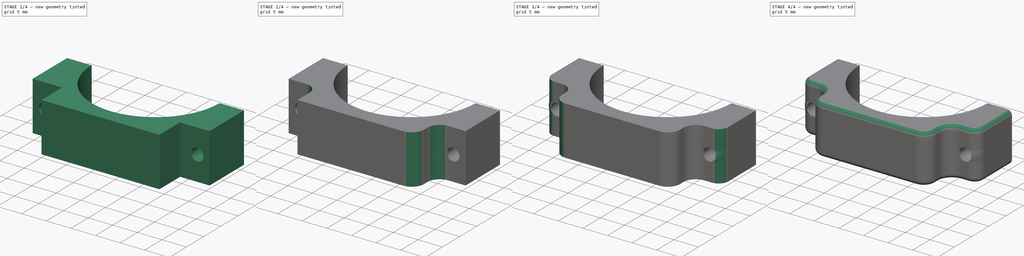
[diagram: build sequence overview — one tinted view per stage of 4, left to right]
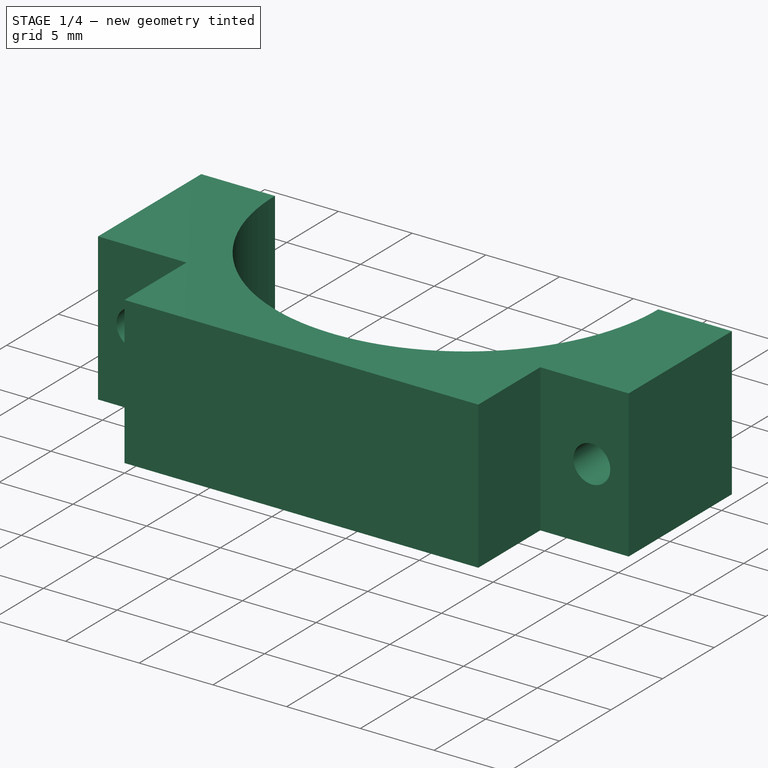
[diagram: stage 1 of 4 — iso view after this stage's code; geometry added in this stage tinted green]
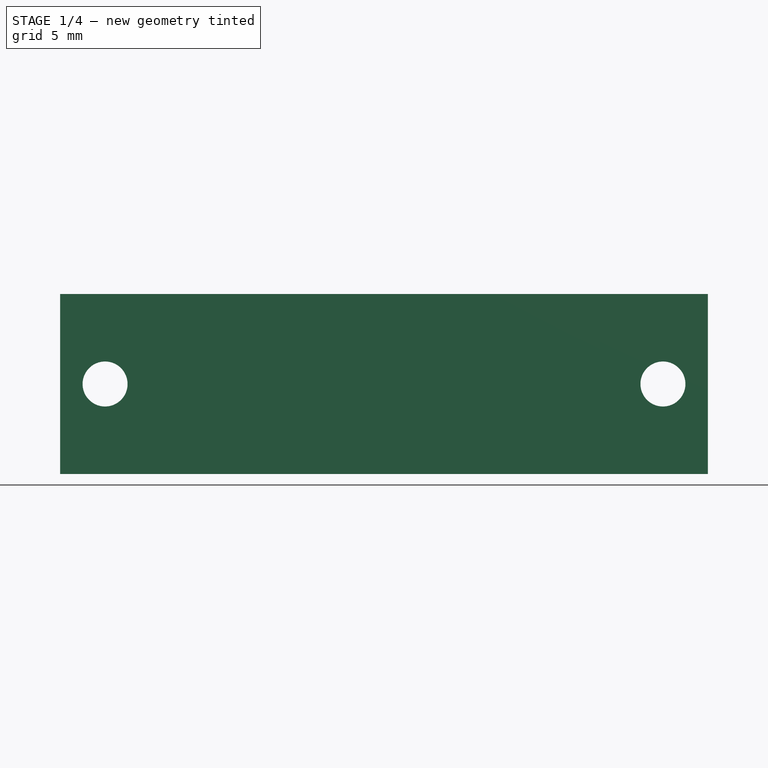
[diagram: stage 1 of 4 — front view after this stage's code; geometry added in this stage tinted green]
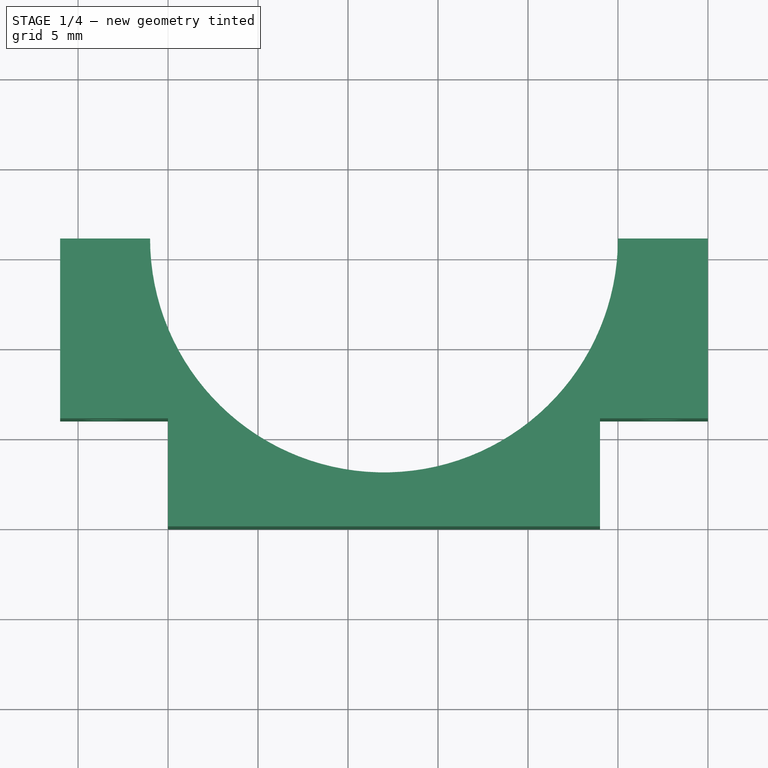
[diagram: stage 1 of 4 — top view after this stage's code; geometry added in this stage tinted green]
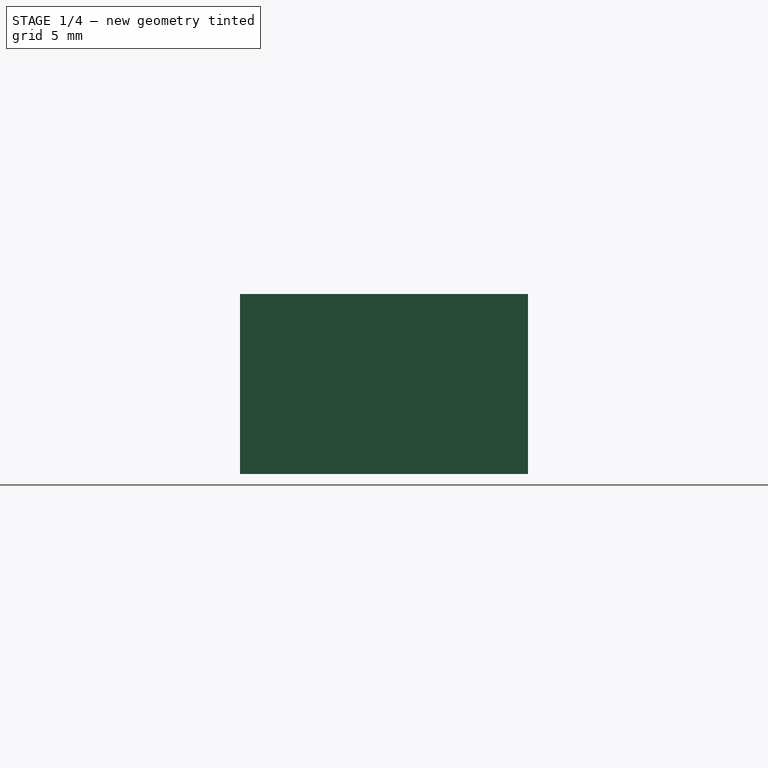
[diagram: stage 1 of 4 — right view after this stage's code; geometry added in this stage tinted green]
FCSTD DOCUMENT  (FreeCAD 0.19R22960 (Git))
Label: pump_clamp
License: All rights reserved
LicenseURL: http://en.wikipedia.org/wiki/All_rights_reserved
objects: PartDesign::Fillet×8, App::DocumentObjectGroup×2, PartDesign::CoordinateSystem×2, Sketcher::SketchObject×2, App::FeaturePython×1, PartDesign::Pad×1, PartDesign::Pocket×1, PartDesign::Body×1, App::Part×1
note: 25 computed .brp shape members not serialized (recipe doc carries the construction recipe); baked Part::Feature solids carry a one-line shape summary decoded from their .brp

FEATURE [App::DocumentObjectGroup] Parts
FEATURE [PartDesign::CoordinateSystem] LCS_Origin
  AttacherType = Attacher::AttachEngine3D
  MapMode = 2
  Support = -> [X_Axis]
FEATURE [App::DocumentObjectGroup] Constraints
FEATURE [App::FeaturePython] Variables  # WARN: FeaturePython — macro-defined, semantics opaque (R4)
FEATURE [Sketcher::SketchObject] Sketch001
  MapMode = 5
  sketch-geometry (10):
    g0: LineSegment StartX=-36 StartY=16 StartZ=0 EndX=-31 EndY=16 EndZ=0
    g1: LineSegment StartX=0 StartY=16 StartZ=0 EndX=-5 EndY=16 EndZ=0
    g2: ArcOfCircle CenterX=-18 CenterY=16 CenterZ=0 NormalX=0 NormalY=0 NormalZ=1 AngleXU=0 Radius=13 StartAngle=3.14159 EndAngle=6.28319
    g3: LineSegment StartX=-36 StartY=6 StartZ=0 EndX=-36 EndY=16 EndZ=0
    g4: LineSegment StartX=-36 StartY=6 StartZ=0 EndX=-30 EndY=6 EndZ=0
    g5: LineSegment StartX=-30 StartY=6 StartZ=0 EndX=-30 EndY=0 EndZ=0
    g6: LineSegment StartX=-6 StartY=0 StartZ=0 EndX=-6 EndY=6 EndZ=0
    g7: LineSegment StartX=-6 StartY=6 StartZ=0 EndX=0 EndY=6 EndZ=0
    g8: LineSegment StartX=0 StartY=6 StartZ=0 EndX=0 EndY=16 EndZ=0
    g9: LineSegment StartX=-30 StartY=0 StartZ=0 EndX=-6 EndY=0 EndZ=0
  constraints (32):
    c: Horizontal(g0)
    c: Horizontal(g1)
    c: Equal(g1,g0)
    c: DistanceX(g1,g1) = 5
    c: Coincident(g2,g0)
    c: Coincident(g2,g1)
    c: Horizontal(g2,g0)
    c: Horizontal(g1,g0)
    c: Coincident(g3,g0)
    c: Vertical(g3)
    c: Equal(g0,g1)
    c: Diameter(g2) = 26
    c: DistanceY(g3,g3) = 10
    c: Horizontal(g4)
    c: Coincident(g5,g4)
    c: Vertical(g5)
    c: Vertical(g6)
    c: Coincident(g7,g6)
    c: Horizontal(g7)
    c: Coincident(g8,g7)
    c: Coincident(g8,g1)
    c: Vertical(g8)
    c: Coincident(g9,g5)
    c: Coincident(g9,g6)
    c: Horizontal(g9)
    c: Equal(g6,g7)
    c: Equal(g7,g5)
    c: Equal(g5,g4)
    c: Horizontal(g6,g-1)
    c: Vertical(g7,g-1)
    c: Coincident(g3,g4)
    c: DistanceY(g5,g5) = 6
FEATURE [PartDesign::Pad] Pad
  Direction = (1,1,1)
  Length = 10
  Length2 = 100
  Profile = -> Sketch001
  Type = 0
FEATURE [Sketcher::SketchObject] Sketch
  ExternalGeometry = -> [Pad,Sketch001]
  MapMode = 5
  Placement = pos=(0,16,0) rot=(0,0.707107,0.707107;3.14159rad)
  Support = -> [Pad]
  sketch-geometry (10):
    g0: Circle CenterX=2.5 CenterY=5 CenterZ=0 NormalX=0 NormalY=0 NormalZ=1 AngleXU=0 Radius=1.25
    g1: Circle CenterX=33.5 CenterY=5 CenterZ=0 NormalX=0 NormalY=0 NormalZ=1 AngleXU=0 Radius=1.25
    g2: LineSegment [constr] StartX=2.5 StartY=5 StartZ=0 EndX=5 EndY=5 EndZ=0
    g3: LineSegment [constr] StartX=2.5 StartY=5 StartZ=0 EndX=0 EndY=5 EndZ=0
    g4: LineSegment [constr] StartX=2.5 StartY=5 StartZ=0 EndX=2.5 EndY=10 EndZ=0
    g5: LineSegment [constr] StartX=2.5 StartY=5 StartZ=0 EndX=2.5 EndY=0 EndZ=0
    g6: LineSegment [constr] StartX=33.5 StartY=5 StartZ=0 EndX=33.5 EndY=10 EndZ=0
    g7: LineSegment [constr] StartX=33.5 StartY=5 StartZ=0 EndX=36 EndY=5 EndZ=0
    g8: LineSegment [constr] StartX=33.5 StartY=5 StartZ=0 EndX=33.5 EndY=0 EndZ=0
    g9: LineSegment [constr] StartX=33.5 StartY=5 StartZ=0 EndX=31 EndY=5 EndZ=0
  constraints (30):
    c: Coincident(g2,g0)
    c: PointOnObject(g2,g-7)
    c: Horizontal(g2)
    c: Coincident(g3,g0)
    c: PointOnObject(g3,g-9)
    c: Horizontal(g3)
    c: Coincident(g4,g0)
    c: PointOnObject(g4,g-8)
    c: Vertical(g4)
    c: Coincident(g5,g0)
    c: PointOnObject(g5,g-10)
    c: Vertical(g5)
    c: Coincident(g6,g1)
    c: PointOnObject(g6,g-4)
    c: Vertical(g6)
    c: Coincident(g7,g1)
    c: PointOnObject(g7,g-5)
    c: Horizontal(g7)
    c: Coincident(g8,g1)
    c: Coincident(g9,g1)
    c: Horizontal(g9)
    c: Vertical(g8)
    c: Equal(g2,g3)
    c: Equal(g3,g9)
    c: Equal(g9,g7)
    c: Equal(g4,g5)
    c: Equal(g5,g8)
    c: Equal(g8,g6)
    c: Equal(g0,g1)
    c: Diameter(g0) = 2.5
FEATURE [PartDesign::Pocket] Pocket
  BaseFeature = -> Pad
  Length = 5
  Length2 = 100
  Profile = -> Sketch
  Type = 1
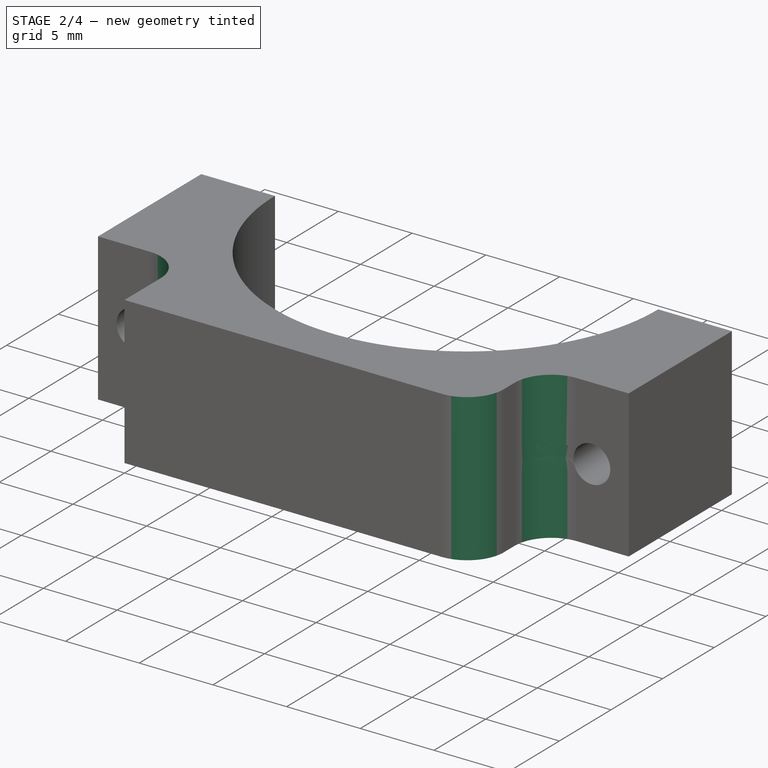
[diagram: stage 2 of 4 — iso view after this stage's code; geometry added in this stage tinted green]
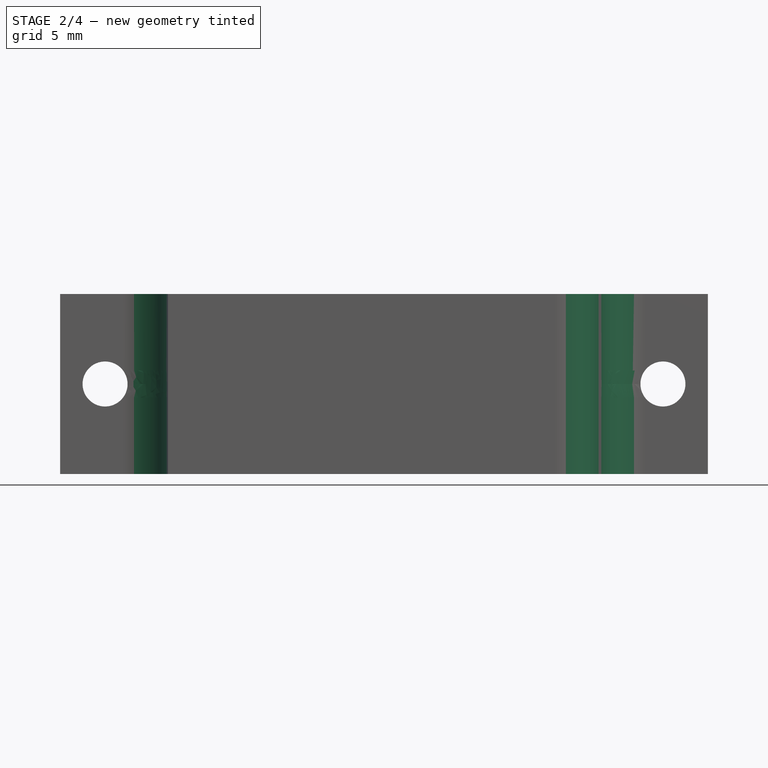
[diagram: stage 2 of 4 — front view after this stage's code; geometry added in this stage tinted green]
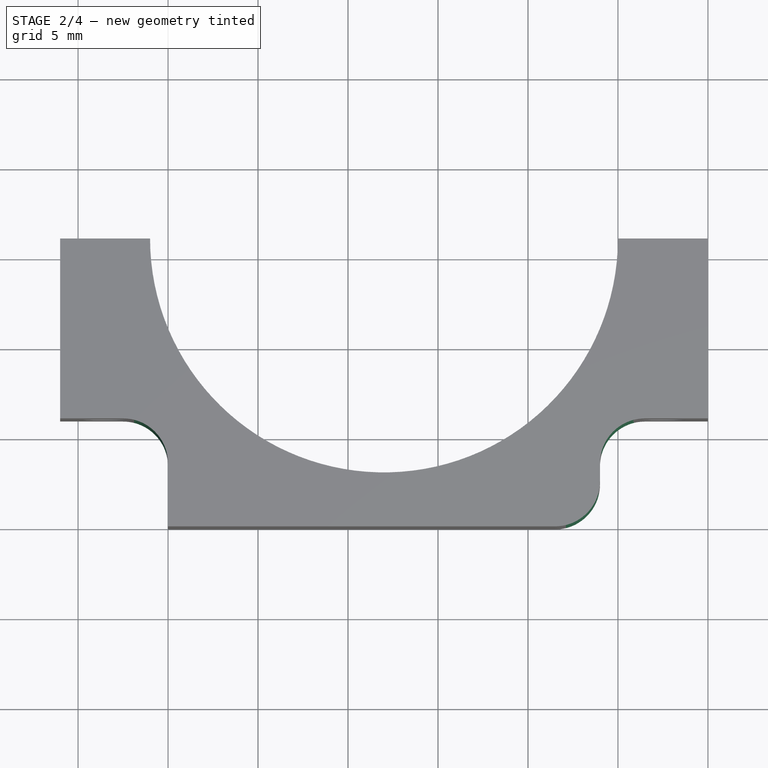
[diagram: stage 2 of 4 — top view after this stage's code; geometry added in this stage tinted green]
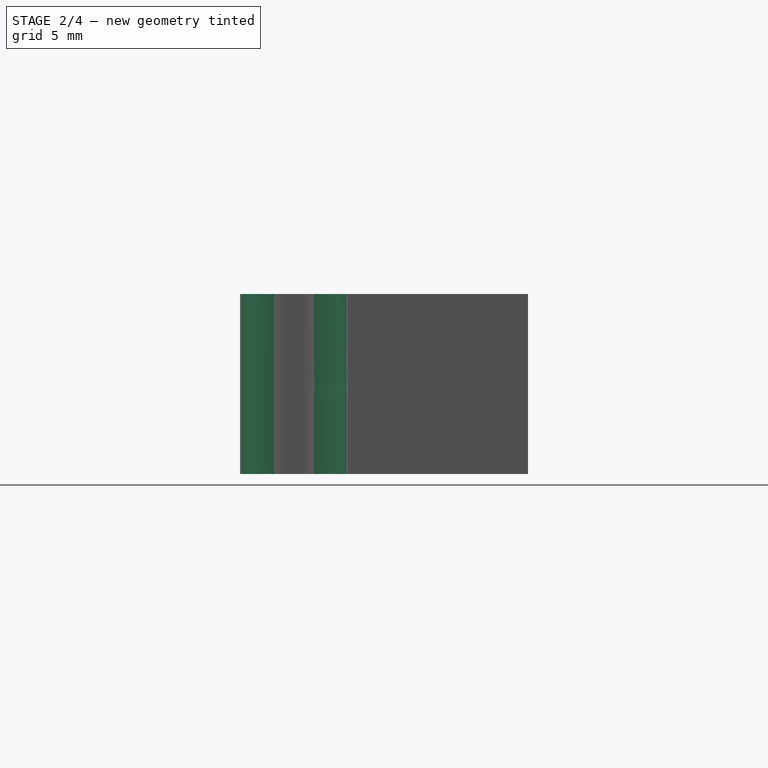
[diagram: stage 2 of 4 — right view after this stage's code; geometry added in this stage tinted green]
FEATURE [PartDesign::Fillet] Fillet
  Base = -> Pocket [Edge33]
  BaseFeature = -> Pocket
  Radius = 2.5
  SupportTransform = false
FEATURE [PartDesign::Fillet] Fillet001
  Base = -> Fillet [Edge21]
  BaseFeature = -> Fillet
  Radius = 2.5
  SupportTransform = false
FEATURE [PartDesign::Fillet] Fillet002
  Base = -> Fillet001 [Edge29]
  BaseFeature = -> Fillet001
  Radius = 2.5
  SupportTransform = false
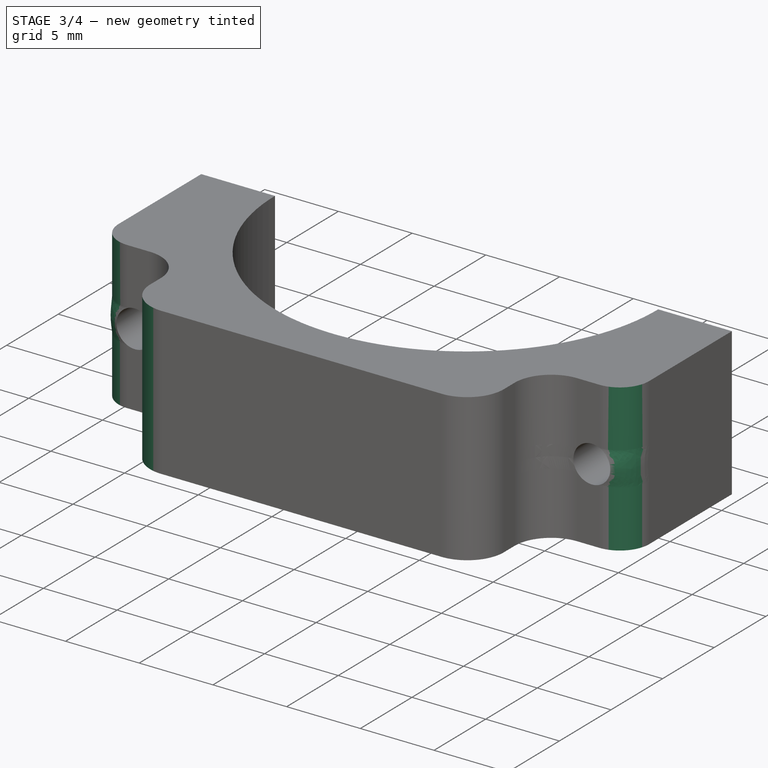
[diagram: stage 3 of 4 — iso view after this stage's code; geometry added in this stage tinted green]
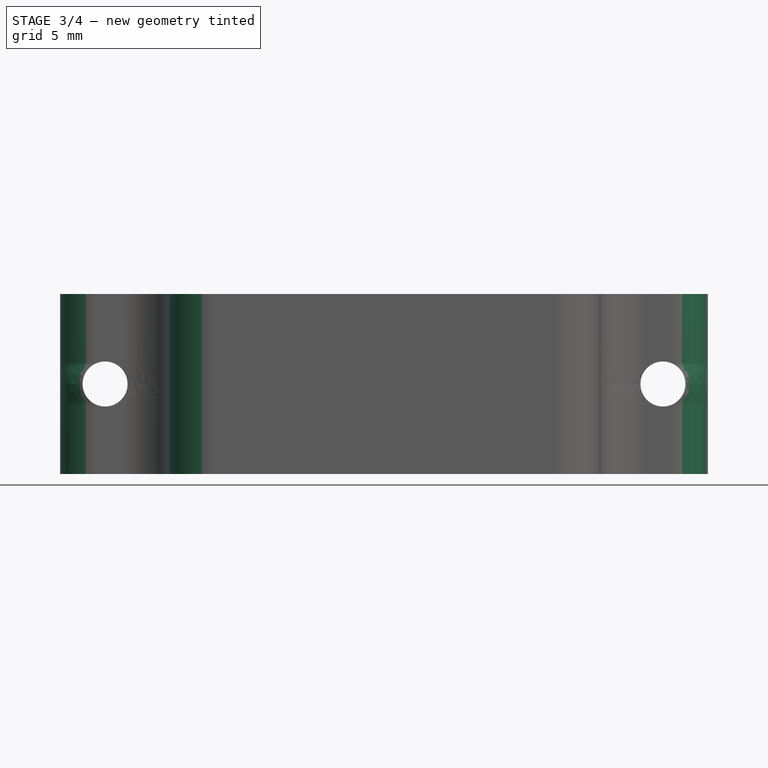
[diagram: stage 3 of 4 — front view after this stage's code; geometry added in this stage tinted green]
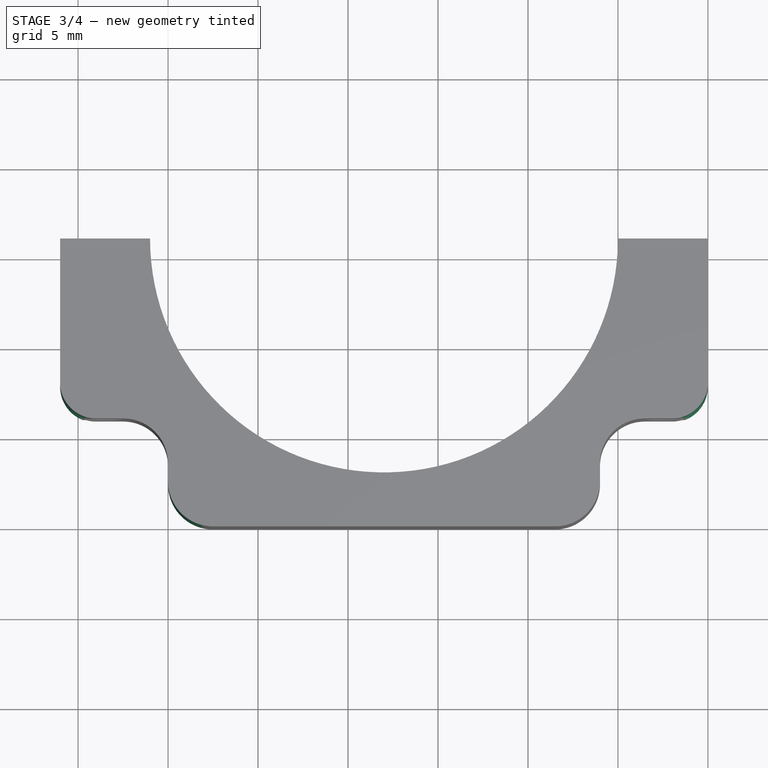
[diagram: stage 3 of 4 — top view after this stage's code; geometry added in this stage tinted green]
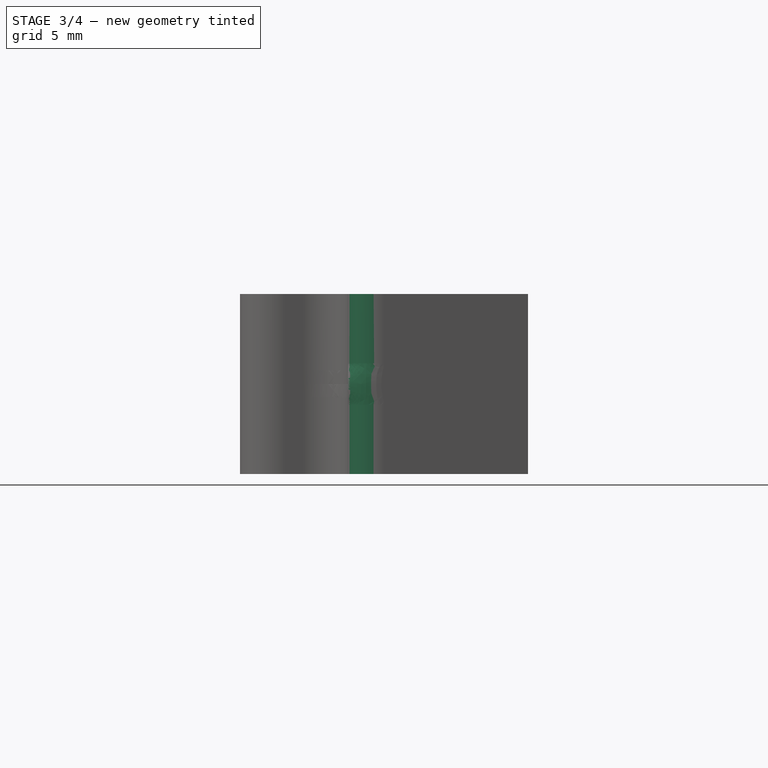
[diagram: stage 3 of 4 — right view after this stage's code; geometry added in this stage tinted green]
FEATURE [PartDesign::Fillet] Fillet003
  Base = -> Fillet002 [Edge15]
  BaseFeature = -> Fillet002
  Radius = 2.5
  SupportTransform = false
FEATURE [PartDesign::Fillet] Fillet004
  Base = -> Fillet003 [Edge26]
  BaseFeature = -> Fillet003
  Radius = 2
  SupportTransform = false
FEATURE [PartDesign::Fillet] Fillet005
  Base = -> Fillet004 [Edge46]
  BaseFeature = -> Fillet004
  Radius = 2
  SupportTransform = false
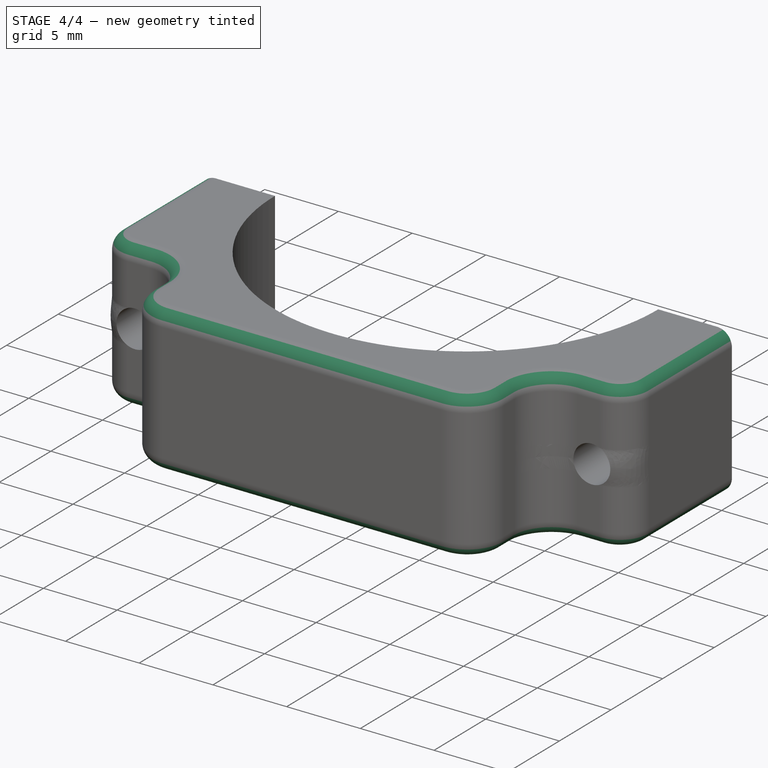
[diagram: stage 4 of 4 — iso view after this stage's code; geometry added in this stage tinted green]
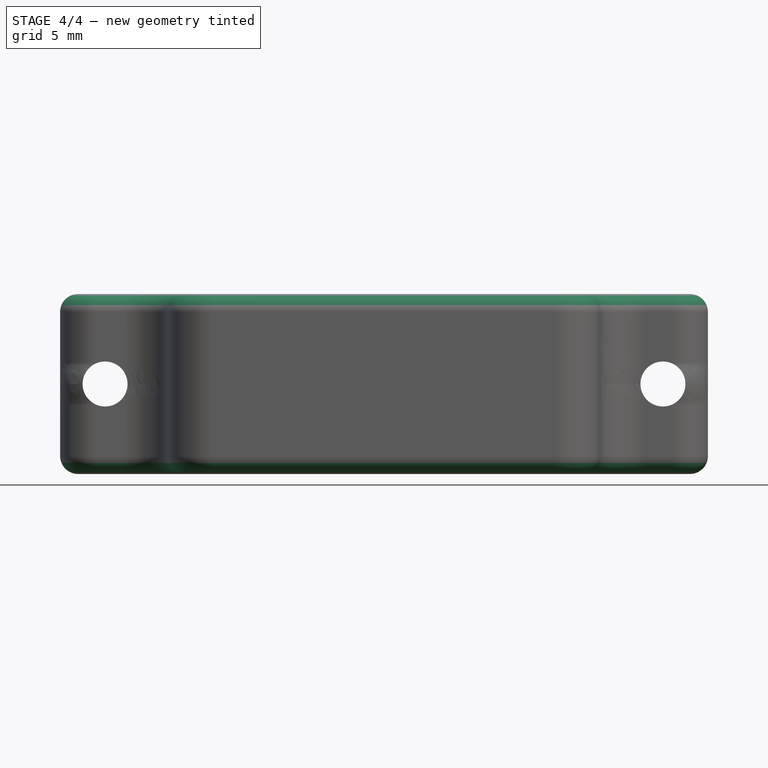
[diagram: stage 4 of 4 — front view after this stage's code; geometry added in this stage tinted green]
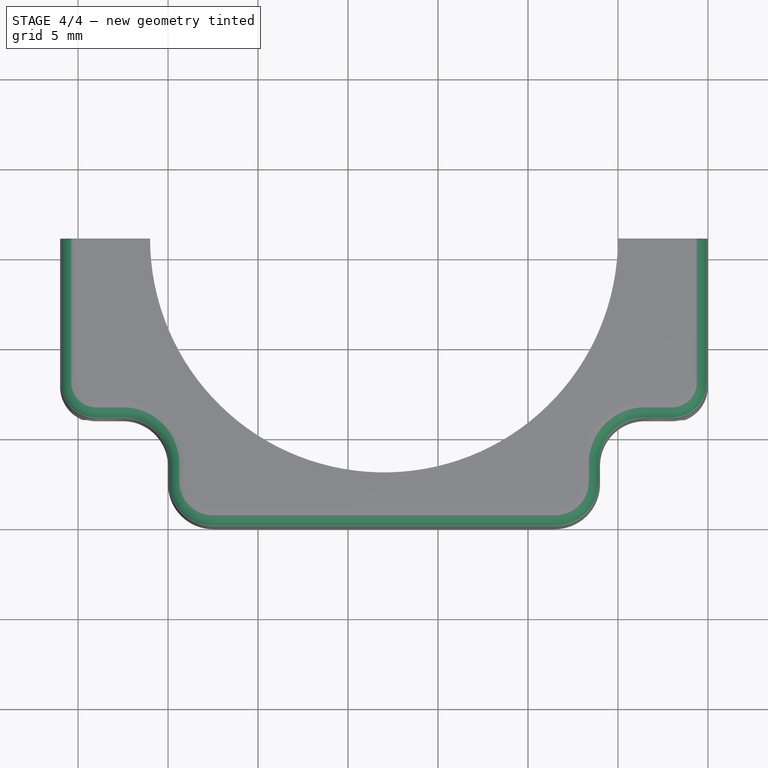
[diagram: stage 4 of 4 — top view after this stage's code; geometry added in this stage tinted green]
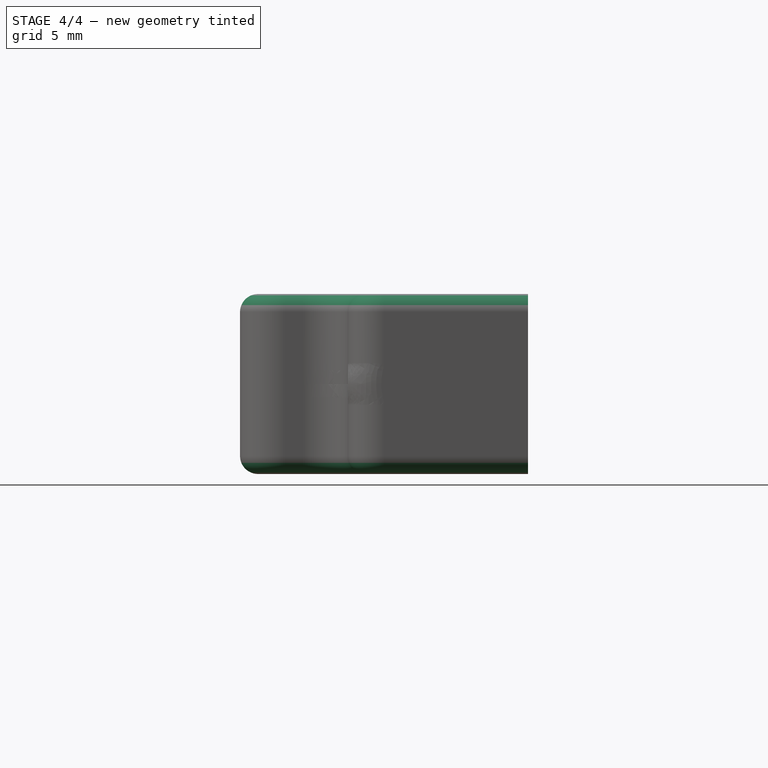
[diagram: stage 4 of 4 — right view after this stage's code; geometry added in this stage tinted green]
FEATURE [PartDesign::Fillet] Fillet006
  Base = -> Fillet005 [Edge66]
  BaseFeature = -> Fillet005
  Radius = 1
  SupportTransform = false
FEATURE [PartDesign::Fillet] Fillet007
  Base = -> Fillet006 [Edge26]
  BaseFeature = -> Fillet006
  Radius = 1
  SupportTransform = false
FEATURE [PartDesign::Body] Body
  Group = -> [Sketch001,Pad,Sketch,Pocket,Fillet,Fillet001,Fillet002,Fillet003,Fillet004,Fillet005,Fillet006,Fillet007]
  Origin = -> Origin001
  Tip = -> Fillet007
FEATURE [PartDesign::CoordinateSystem] MH
  AttacherType = Attacher::AttachEngine3D
  MapMode = 11
  Placement = pos=(-33.5,16,5) rot=(0.57735,0.57735,0.57735;4.18879rad)
  Support = -> [Fillet007]
FEATURE [App::Part] Model
  Configuration = 0
  Group = -> [LCS_Origin,Constraints,Variables,Body,MH]
  Origin = -> Origin
  Type = Assembly4 Model
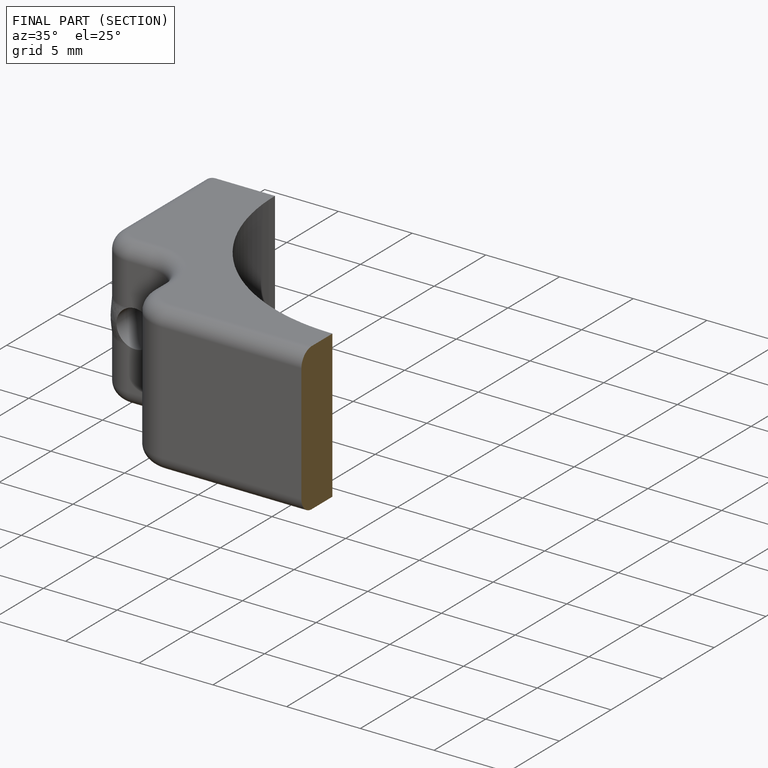
[diagram: finished part — half-section view (interior)]
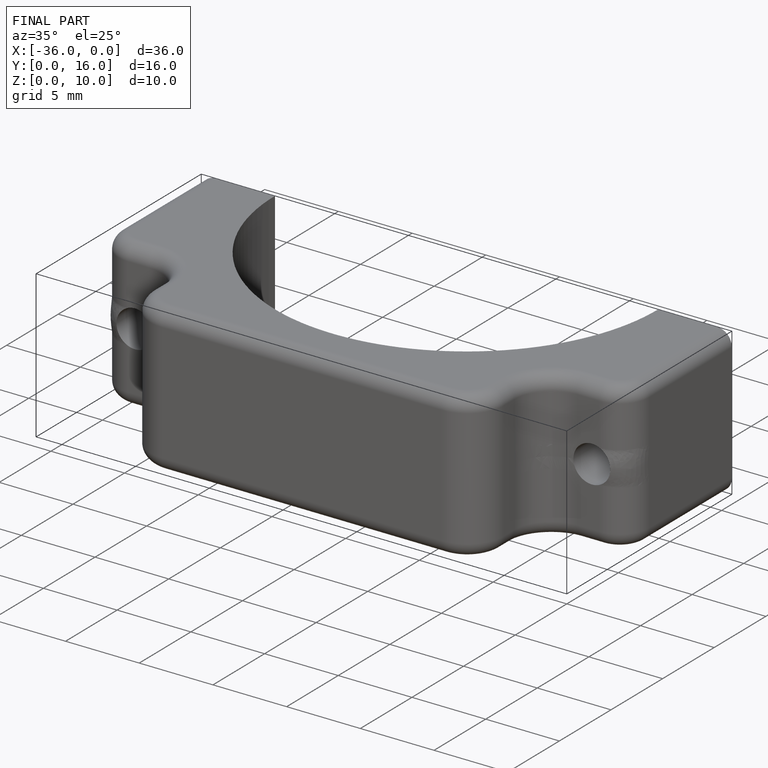
[diagram: finished part — iso view with bounding-box wireframe]
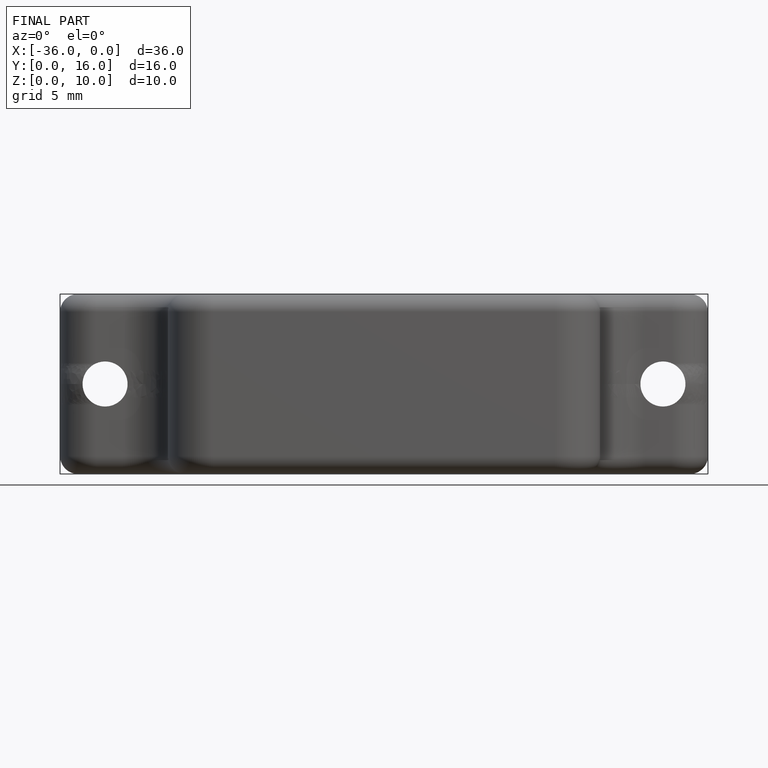
[diagram: finished part — front view with bounding-box wireframe]
